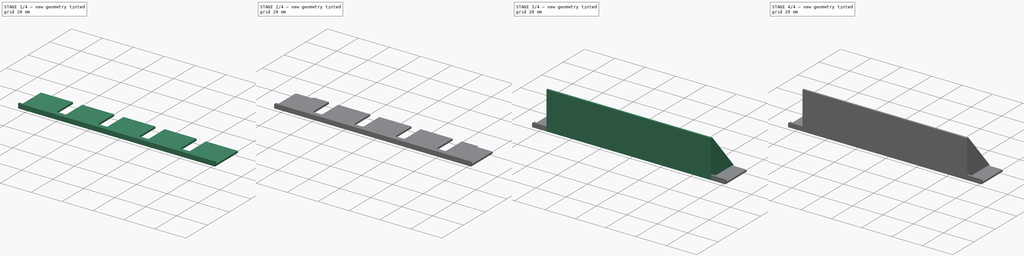
[diagram: build sequence overview — one tinted view per stage of 4, left to right]
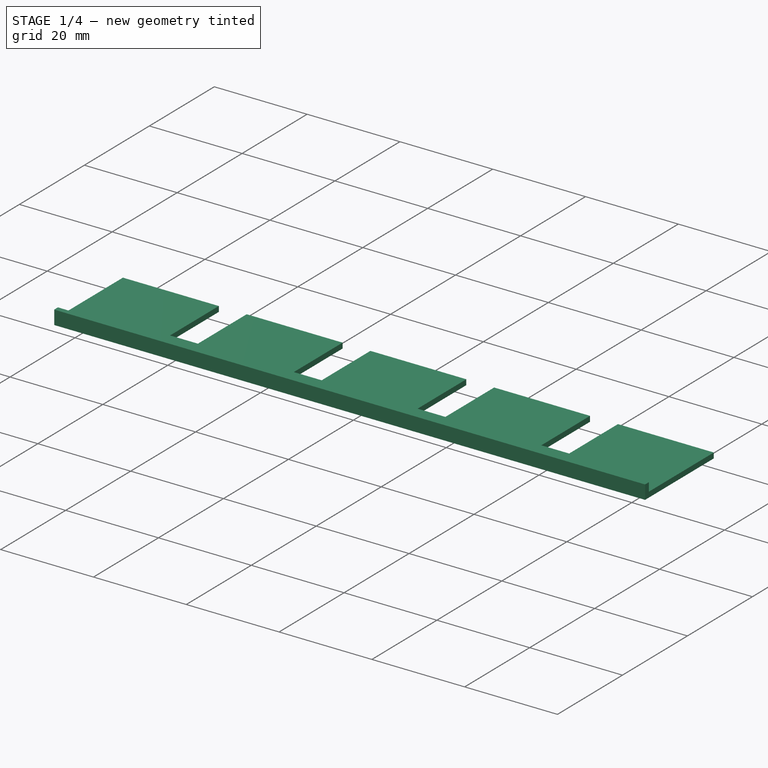
[diagram: stage 1 of 4 — iso view after this stage's code; geometry added in this stage tinted green]
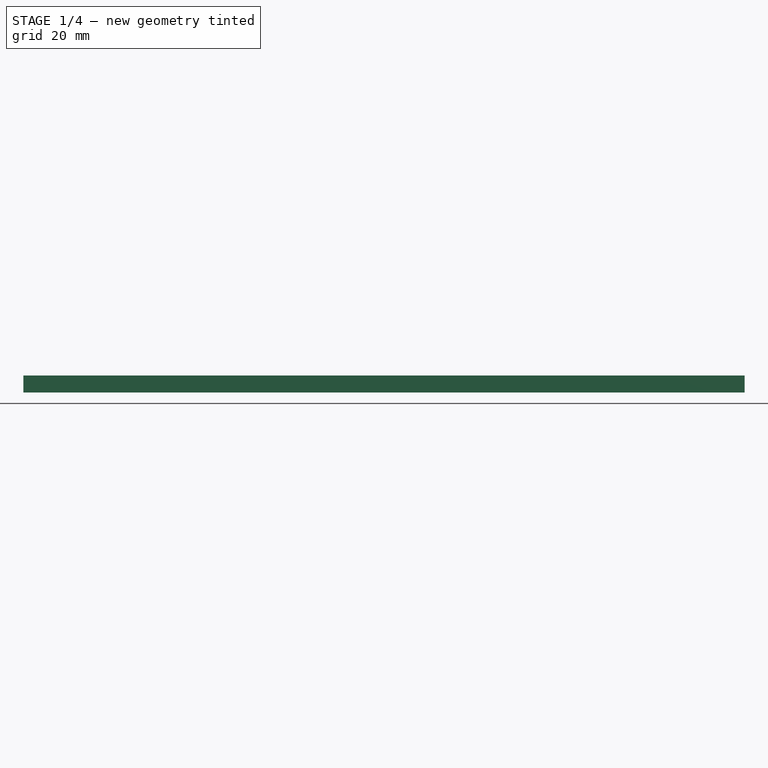
[diagram: stage 1 of 4 — front view after this stage's code; geometry added in this stage tinted green]
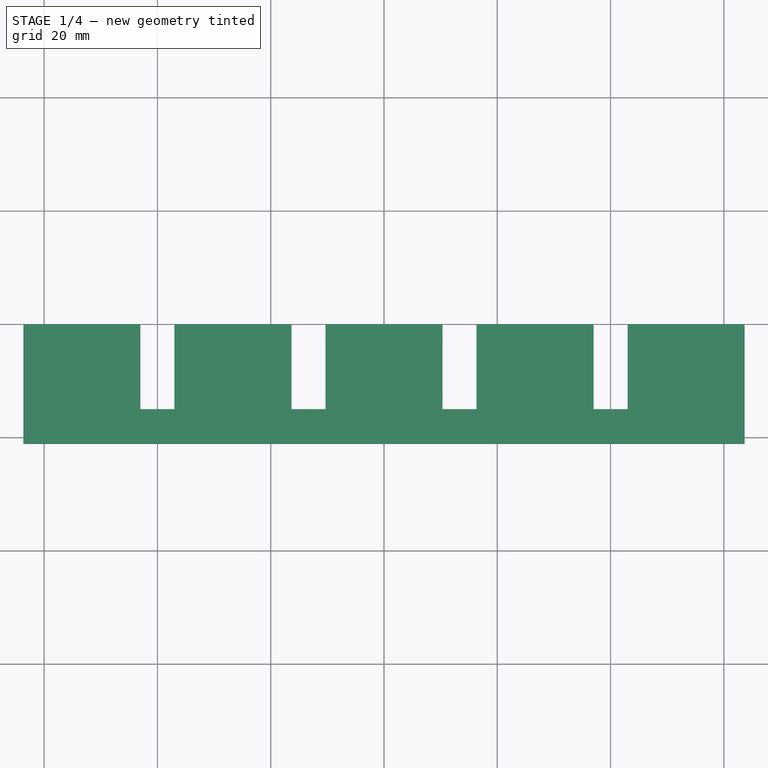
[diagram: stage 1 of 4 — top view after this stage's code; geometry added in this stage tinted green]
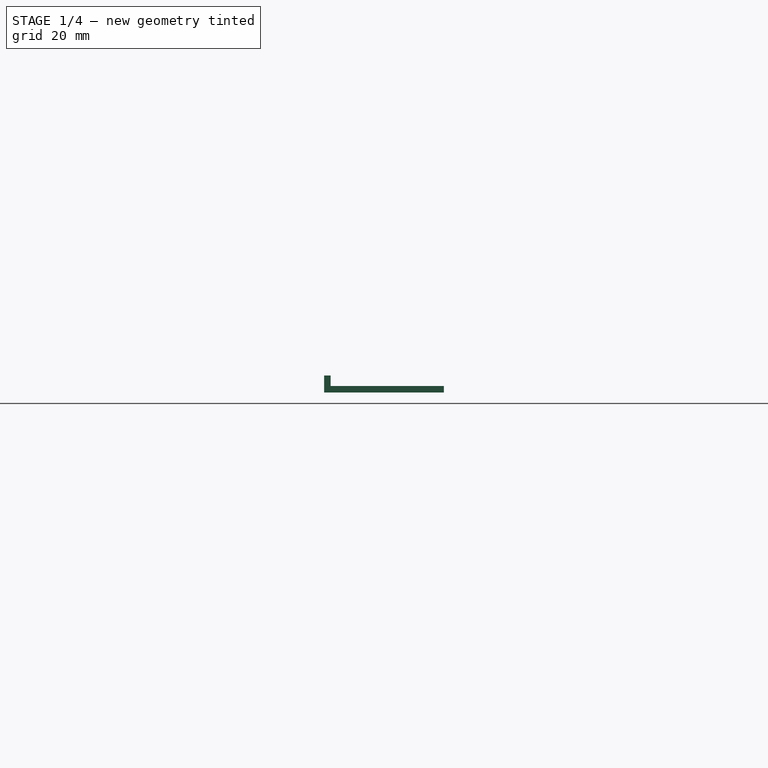
[diagram: stage 1 of 4 — right view after this stage's code; geometry added in this stage tinted green]
FCSTD DOCUMENT  (FreeCAD 0.21R33668 +26 (Git))
Label: fader_assembly_jig
License: All rights reserved
LicenseURL: https://en.wikipedia.org/wiki/All_rights_reserved
objects: Sketcher::SketchObject×5, PartDesign::Pad×5, PartDesign::Chamfer×2, PartDesign::Fillet×2, PartDesign::Body×2, PartDesign::Plane×1, PartDesign::Mirrored×1
note: 27 computed .brp shape members not serialized (recipe doc carries the construction recipe); baked Part::Feature solids carry a one-line shape summary decoded from their .brp

FEATURE [PartDesign::Body] Body
  Group = -> [Sketch,Pad,Sketch001,Pad002,DatumPlane,Sketch003,Pad003,Mirrored,Chamfer001,Fillet]
  Origin = -> Origin
  Tip = -> Fillet
FEATURE [Sketcher::SketchObject] Sketch004
  FullyConstrained = true
  MapMode = 5
  Support = -> [XY_Plane001]
  sketch-geometry (25):
    g0: LineSegment StartX=-63.675 StartY=0 StartZ=0 EndX=63.675 EndY=-7.77e-14 EndZ=0
    g1: LineSegment StartX=-63.675 StartY=0 StartZ=0 EndX=-63.675 EndY=20 EndZ=0
    g2: LineSegment StartX=63.675 StartY=-7.77e-14 StartZ=0 EndX=63.675 EndY=20 EndZ=0
    g3: LineSegment StartX=-63.675 StartY=20 StartZ=0 EndX=-43.005 EndY=20 EndZ=0
    g4: LineSegment StartX=-43.005 StartY=20 StartZ=0 EndX=-43.005 EndY=5 EndZ=0
    g5: LineSegment StartX=-43.005 StartY=5 StartZ=0 EndX=-37.005 EndY=5 EndZ=0
    g6: LineSegment StartX=-37.005 StartY=5 StartZ=0 EndX=-37.005 EndY=20 EndZ=0
    g7: LineSegment StartX=-37.005 StartY=20 StartZ=0 EndX=-16.335 EndY=20 EndZ=0
    g8: LineSegment StartX=-16.335 StartY=20 StartZ=0 EndX=-16.335 EndY=5 EndZ=0
    g9: LineSegment StartX=10.335 StartY=5 StartZ=0 EndX=10.335 EndY=20 EndZ=0
    g10: LineSegment StartX=10.335 StartY=20 StartZ=0 EndX=-10.335 EndY=20 EndZ=0
    g11: LineSegment StartX=-10.335 StartY=20 StartZ=0 EndX=-10.335 EndY=5 EndZ=0
    g12: LineSegment StartX=16.335 StartY=5 StartZ=0 EndX=16.335 EndY=20 EndZ=0
    g13: LineSegment StartX=16.335 StartY=20 StartZ=0 EndX=37.005 EndY=20 EndZ=0
    g14: LineSegment StartX=37.005 StartY=20 StartZ=0 EndX=37.005 EndY=5 EndZ=0
    g15: LineSegment StartX=37.005 StartY=5 StartZ=0 EndX=43.005 EndY=5 EndZ=0
    g16: LineSegment StartX=43.005 StartY=5 StartZ=0 EndX=43.005 EndY=20 EndZ=0
    g17: LineSegment StartX=43.005 StartY=20 StartZ=0 EndX=63.675 EndY=20 EndZ=0
    g18: LineSegment StartX=-16.335 StartY=5 StartZ=0 EndX=-10.335 EndY=5 EndZ=0
    g19: LineSegment StartX=10.335 StartY=5 StartZ=0 EndX=16.335 EndY=5 EndZ=0
    g20: GeomPoint X=1e-16 Y=20 Z=0
    g21: LineSegment StartX=-13.335 StartY=5 StartZ=0 EndX=-13.335 EndY=20 EndZ=0
    g22: LineSegment StartX=13.335 StartY=5 StartZ=0 EndX=13.335 EndY=20 EndZ=0
    g23: LineSegment StartX=40.005 StartY=5 StartZ=0 EndX=40.005 EndY=20 EndZ=0
    g24: LineSegment StartX=-40.005 StartY=5 StartZ=0 EndX=-40.005 EndY=20 EndZ=0
  constraints (73):
    c: PointOnObject(g0,g-1)
    c: Symmetric(g0,g0,g-1)
    c: Coincident(g1,g0)
    c: Vertical(g1)
    c: Coincident(g2,g0)
    c: Vertical(g2)
    c: Coincident(g3,g1)
    c: Horizontal(g3)
    c: Coincident(g4,g3)
    c: Coincident(g5,g4)
    c: Coincident(g6,g5)
    c: Vertical(g6)
    c: Vertical(g11)
    c: Horizontal(g13)
    c: Vertical(g14)
    c: Horizontal(g15)
    c: Vertical(g16)
    c: Horizontal(g17)
    c: Coincident(g17,g2)
    c: Vertical(g12)
    c: Vertical(g9)
    c: Vertical(g8)
    c: Vertical(g4)
    c: Horizontal(g5)
    c: Horizontal(g10)
    c: Horizontal(g7)
    c: Coincident(g9,g10)
    c: Coincident(g11,g10)
    c: Coincident(g13,g12)
    c: Coincident(g8,g7)
    c: Coincident(g7,g6)
    c: Equal(g7,g10)
    c: Equal(g10,g13)
    c: Coincident(g13,g14)
    c: Coincident(g16,g17)
    c: Coincident(g15,g14)
    c: Coincident(g16,g15)
    c: Horizontal(g3,g6)
    c: Horizontal(g7,g9)
    c: Horizontal(g10,g12)
    c: Horizontal(g13,g16)
    c: Horizontal(g5,g8)
    c: Horizontal(g9,g11)
    c: Horizontal(g12,g14)
    c: Coincident(g18,g8)
    c: Coincident(g18,g11)
    c: Horizontal(g18)
    c: Coincident(g19,g9)
    c: Coincident(g19,g12)
    c: Horizontal(g19)
    c: Symmetric(g9,g10,g20)
    c: PointOnObject(g20,g-2)
    c: DistanceY(g1,g1) = 20
    c: Equal(g15,g19)
    c: Equal(g19,g18)
    c: DistanceY(g9,g9) = 15
    c: DistanceX(g0,g0) = 127.35
    c: Vertical(g21)
    c: Vertical(g22)
    c: Vertical(g23)
    c: Vertical(g24)
    c: Symmetric(g4,g5,g24)
    c: Symmetric(g8,g11,g21)
    c: Symmetric(g12,g9,g22)
    c: Symmetric(g15,g14,g23)
    c: Horizontal(g16,g23)
    c: Horizontal(g12,g22)
    c: Horizontal(g10,g21)
    c: Horizontal(g6,g24)
    c: DistanceX(g22,g23) = 26.67
    c: DistanceX(g19,g19) = 6
    c: Equal(g17,g3)
    c: Equal(g7,g3)
FEATURE [PartDesign::Pad] Pad004
  Direction = (0,0,1)
  Length = 1.15
  Length2 = 10
  Profile = -> Sketch004
  ReferenceAxis = -> Sketch004 [N_Axis]
  Type = 0
FEATURE [Sketcher::SketchObject] Sketch005
  FullyConstrained = true
  MapMode = 5
  Placement = pos=(0,0,0) rot=(1,0,0;1.5708rad)
  Support = -> [XZ_Plane001]
  sketch-geometry (4):
    g0: LineSegment StartX=-63.675 StartY=0 StartZ=0 EndX=-63.675 EndY=3 EndZ=0
    g1: LineSegment StartX=63.675 StartY=0 StartZ=0 EndX=63.675 EndY=3 EndZ=0
    g2: LineSegment StartX=63.675 StartY=0 StartZ=0 EndX=-63.675 EndY=0 EndZ=0
    g3: LineSegment StartX=-63.675 StartY=3 StartZ=0 EndX=63.675 EndY=3 EndZ=0
  constraints (11):
    c: PointOnObject(g0,g-1)
    c: Vertical(g0)
    c: Vertical(g1)
    c: Coincident(g2,g1)
    c: Coincident(g2,g0)
    c: DistanceX(g2,g2) = 127.35
    c: Symmetric(g1,g0,g-1)
    c: Coincident(g3,g0)
    c: Coincident(g3,g1)
    c: Horizontal(g3)
    c: DistanceY(g0,g0) = 3
FEATURE [PartDesign::Pad] Pad005
  BaseFeature = -> Pad004
  Direction = (0,-1,-2e-16)
  Length = 1.15
  Length2 = 10
  Profile = -> Sketch005
  ReferenceAxis = -> Sketch005 [N_Axis]
  Type = 0
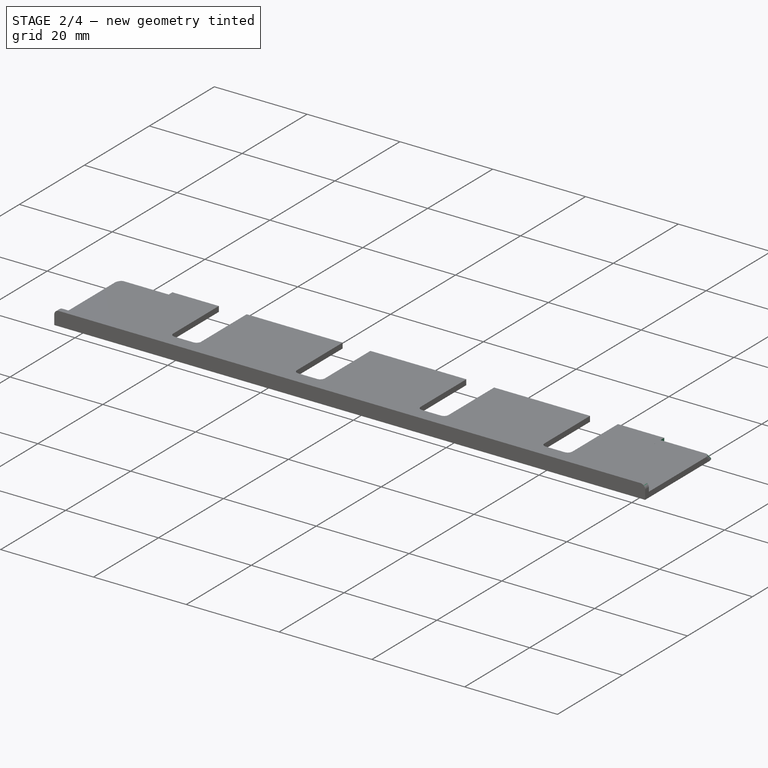
[diagram: stage 2 of 4 — iso view after this stage's code; geometry added in this stage tinted green]
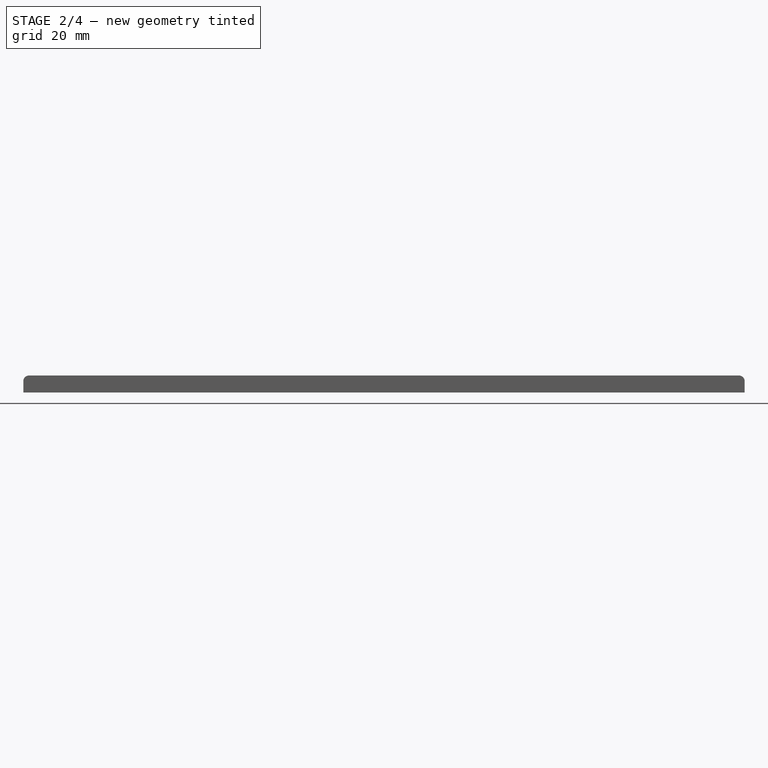
[diagram: stage 2 of 4 — front view after this stage's code; geometry added in this stage tinted green]
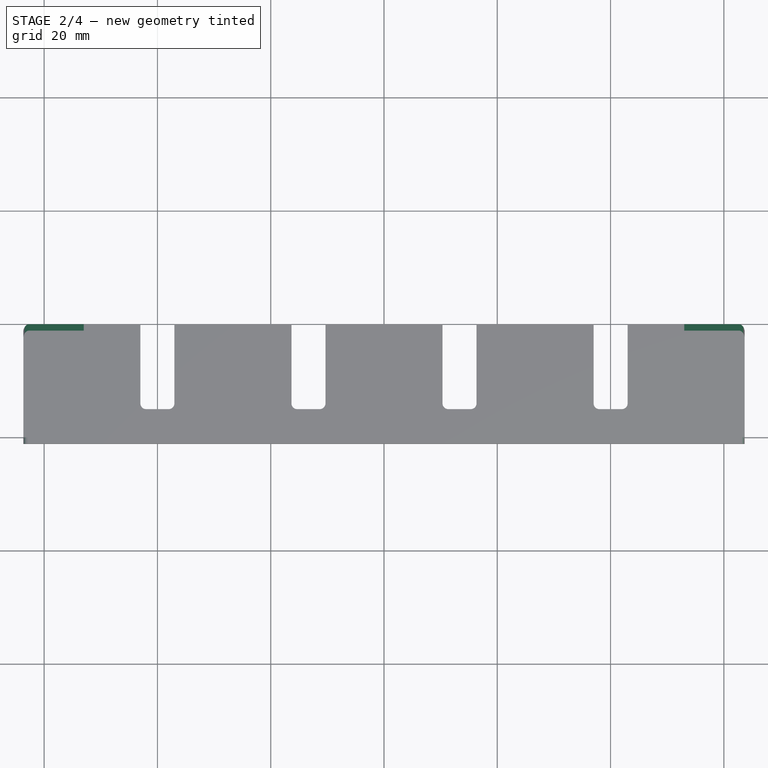
[diagram: stage 2 of 4 — top view after this stage's code; geometry added in this stage tinted green]
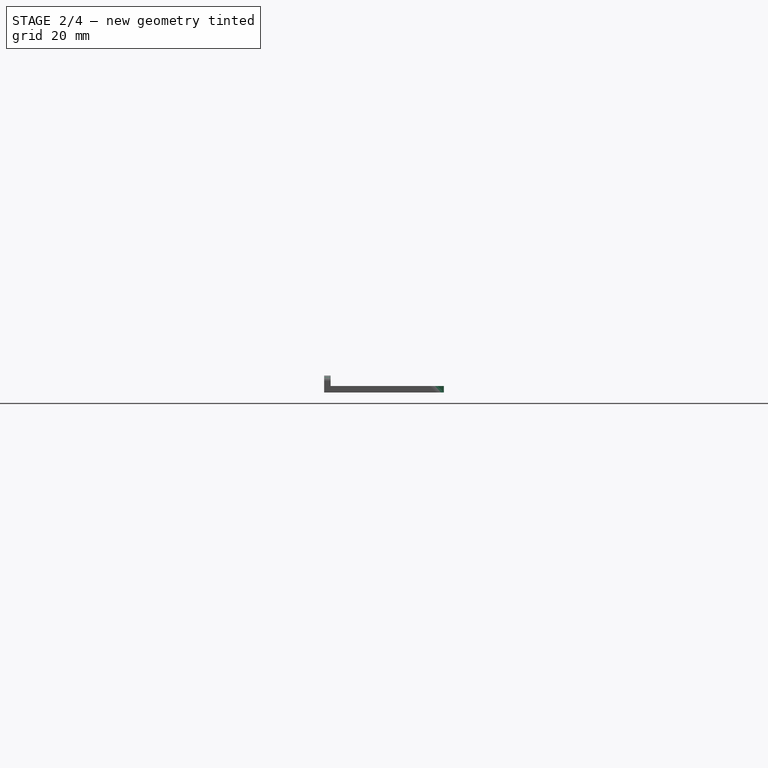
[diagram: stage 2 of 4 — right view after this stage's code; geometry added in this stage tinted green]
FEATURE [Sketcher::SketchObject] Sketch
  FullyConstrained = true
  MapMode = 5
  Support = -> [XY_Plane]
  sketch-geometry (25):
    g0: LineSegment StartX=-53.005 StartY=0 StartZ=0 EndX=53.005 EndY=1.76e-14 EndZ=0
    g1: LineSegment StartX=-53.005 StartY=0 StartZ=0 EndX=-53.005 EndY=20 EndZ=0
    g2: LineSegment StartX=53.005 StartY=1.76e-14 StartZ=0 EndX=53.005 EndY=20 EndZ=0
    g3: LineSegment StartX=-53.005 StartY=20 StartZ=0 EndX=-43.005 EndY=20 EndZ=0
    g4: LineSegment StartX=-43.005 StartY=20 StartZ=0 EndX=-43.005 EndY=5 EndZ=0
    g5: LineSegment StartX=-43.005 StartY=5 StartZ=0 EndX=-37.005 EndY=5 EndZ=0
    g6: LineSegment StartX=-37.005 StartY=5 StartZ=0 EndX=-37.005 EndY=20 EndZ=0
    g7: LineSegment StartX=-37.005 StartY=20 StartZ=0 EndX=-16.335 EndY=20 EndZ=0
    g8: LineSegment StartX=-16.335 StartY=20 StartZ=0 EndX=-16.335 EndY=5 EndZ=0
    g9: LineSegment StartX=10.335 StartY=5 StartZ=0 EndX=10.335 EndY=20 EndZ=0
    g10: LineSegment StartX=10.335 StartY=20 StartZ=0 EndX=-10.335 EndY=20 EndZ=0
    g11: LineSegment StartX=-10.335 StartY=20 StartZ=0 EndX=-10.335 EndY=5 EndZ=0
    g12: LineSegment StartX=16.335 StartY=5 StartZ=0 EndX=16.335 EndY=20 EndZ=0
    g13: LineSegment StartX=16.335 StartY=20 StartZ=0 EndX=37.005 EndY=20 EndZ=0
    g14: LineSegment StartX=37.005 StartY=20 StartZ=0 EndX=37.005 EndY=5 EndZ=0
    g15: LineSegment StartX=37.005 StartY=5 StartZ=0 EndX=43.005 EndY=5 EndZ=0
    g16: LineSegment StartX=43.005 StartY=5 StartZ=0 EndX=43.005 EndY=20 EndZ=0
    g17: LineSegment StartX=43.005 StartY=20 StartZ=0 EndX=53.005 EndY=20 EndZ=0
    g18: LineSegment StartX=-16.335 StartY=5 StartZ=0 EndX=-10.335 EndY=5 EndZ=0
    g19: LineSegment StartX=10.335 StartY=5 StartZ=0 EndX=16.335 EndY=5 EndZ=0
    g20: GeomPoint X=-1e-16 Y=20 Z=0
    g21: LineSegment StartX=-13.335 StartY=5 StartZ=0 EndX=-13.335 EndY=20 EndZ=0
    g22: LineSegment StartX=13.335 StartY=5 StartZ=0 EndX=13.335 EndY=20 EndZ=0
    g23: LineSegment StartX=40.005 StartY=5 StartZ=0 EndX=40.005 EndY=20 EndZ=0
    g24: LineSegment StartX=-40.005 StartY=5 StartZ=0 EndX=-40.005 EndY=20 EndZ=0
  constraints (73):
    c: PointOnObject(g0,g-1)
    c: Symmetric(g0,g0,g-1)
    c: Coincident(g1,g0)
    c: Vertical(g1)
    c: Coincident(g2,g0)
    c: Vertical(g2)
    c: Coincident(g3,g1)
    c: Horizontal(g3)
    c: Coincident(g4,g3)
    c: Coincident(g5,g4)
    c: Coincident(g6,g5)
    c: Vertical(g6)
    c: Vertical(g11)
    c: Horizontal(g13)
    c: Vertical(g14)
    c: Horizontal(g15)
    c: Vertical(g16)
    c: Horizontal(g17)
    c: Coincident(g17,g2)
    c: Vertical(g12)
    c: Vertical(g9)
    c: Vertical(g8)
    c: Vertical(g4)
    c: Horizontal(g5)
    c: Horizontal(g10)
    c: Horizontal(g7)
    c: Coincident(g9,g10)
    c: Coincident(g11,g10)
    c: Coincident(g13,g12)
    c: Coincident(g8,g7)
    c: Coincident(g7,g6)
    c: Equal(g7,g10)
    c: Equal(g10,g13)
    c: Coincident(g13,g14)
    c: Coincident(g16,g17)
    c: Coincident(g15,g14)
    c: Coincident(g16,g15)
    c: Horizontal(g3,g6)
    c: Horizontal(g7,g9)
    c: Horizontal(g10,g12)
    c: Horizontal(g13,g16)
    c: Horizontal(g5,g8)
    c: Horizontal(g9,g11)
    c: Horizontal(g12,g14)
    c: Coincident(g18,g8)
    c: Coincident(g18,g11)
    c: Horizontal(g18)
    c: Coincident(g19,g9)
    c: Coincident(g19,g12)
    c: Horizontal(g19)
    c: Symmetric(g9,g10,g20)
    c: PointOnObject(g20,g-2)
    c: DistanceY(g1,g1) = 20
    c: Equal(g15,g19)
    c: Equal(g19,g18)
    c: DistanceY(g9,g9) = 15
    c: DistanceX(g0,g0) = 106.01
    c: Vertical(g21)
    c: Vertical(g22)
    c: Vertical(g23)
    c: Vertical(g24)
    c: Symmetric(g4,g5,g24)
    c: Symmetric(g8,g11,g21)
    c: Symmetric(g12,g9,g22)
    c: Symmetric(g15,g14,g23)
    c: Horizontal(g16,g23)
    c: Horizontal(g12,g22)
    c: Horizontal(g10,g21)
    c: Horizontal(g6,g24)
    c: DistanceX(g22,g23) = 26.67
    c: DistanceX(g19,g19) = 6
    c: Equal(g17,g3)
    c: DistanceX(g3,g3) = 10
FEATURE [PartDesign::Pad] Pad
  Direction = (0,0,1)
  Length = 1.15
  Length2 = 10
  Profile = -> Sketch
  ReferenceAxis = -> Sketch [N_Axis]
  Type = 0
FEATURE [PartDesign::Chamfer] Chamfer
  Angle = 45
  Base = -> Pad005 [Edge31,Edge7,Edge43,Edge39,Edge35]
  BaseFeature = -> Pad005
  ChamferType = 0
  FlipDirection = false
  Size = 1.14
  Size2 = 1
  SupportTransform = false
  UseAllEdges = false
FEATURE [PartDesign::Fillet] Fillet001
  Base = -> Chamfer [Edge64,Edge60,Edge66,Edge68,Edge71,Edge73,Edge75,Edge78,Edge5,Edge2,Edge9,Edge49,Edge51,Edge54,Edge65,Edge72,Edge47,Edge48,Edge82,Edge84]
  BaseFeature = -> Chamfer
  Radius = 1
  SupportTransform = false
  UseAllEdges = false
FEATURE [PartDesign::Body] Body001
  Group = -> [Sketch004,Pad004,Sketch005,Pad005,Chamfer,Fillet001]
  Origin = -> Origin001
  Tip = -> Fillet001
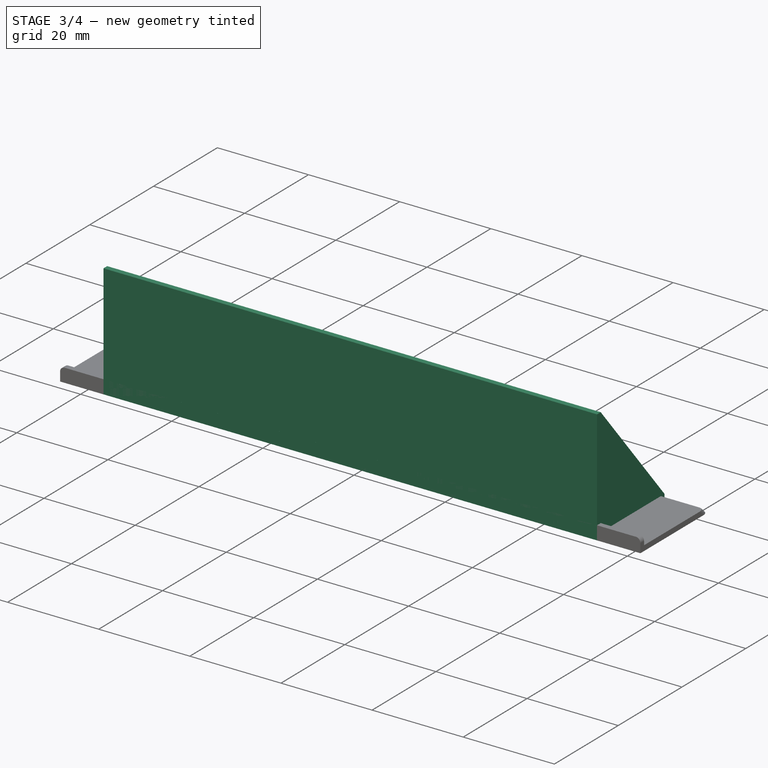
[diagram: stage 3 of 4 — iso view after this stage's code; geometry added in this stage tinted green]
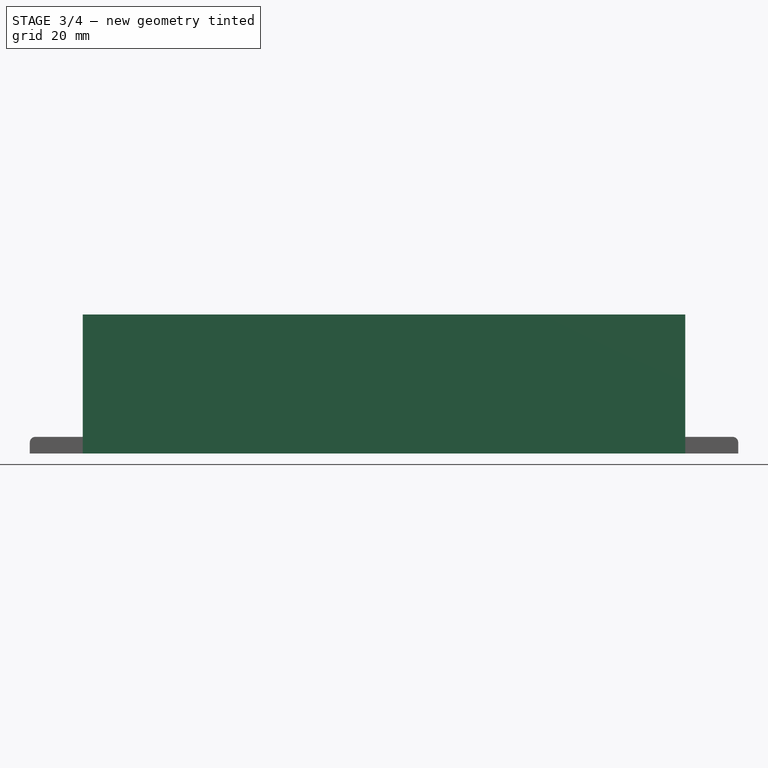
[diagram: stage 3 of 4 — front view after this stage's code; geometry added in this stage tinted green]
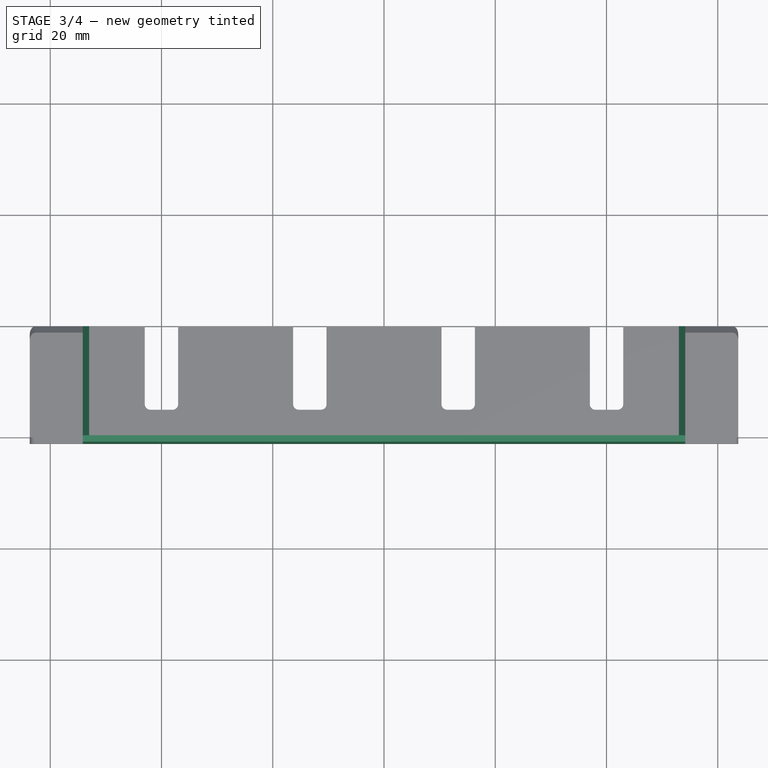
[diagram: stage 3 of 4 — top view after this stage's code; geometry added in this stage tinted green]
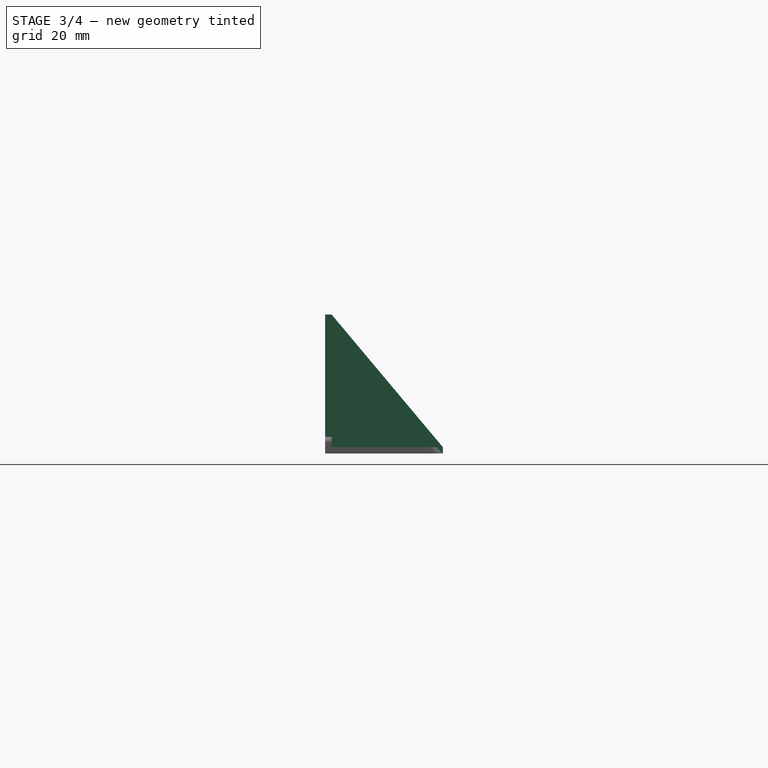
[diagram: stage 3 of 4 — right view after this stage's code; geometry added in this stage tinted green]
FEATURE [Sketcher::SketchObject] Sketch001
  FullyConstrained = true
  MapMode = 5
  Placement = pos=(0,0,0) rot=(1,0,0;1.5708rad)
  Support = -> [XZ_Plane]
  sketch-geometry (4):
    g0: LineSegment StartX=-53.005 StartY=0 StartZ=0 EndX=-53.005 EndY=25 EndZ=0
    g1: LineSegment StartX=53.005 StartY=0 StartZ=0 EndX=53.005 EndY=25 EndZ=0
    g2: LineSegment StartX=53.005 StartY=0 StartZ=0 EndX=-53.005 EndY=0 EndZ=0
    g3: LineSegment StartX=-53.005 StartY=25 StartZ=0 EndX=53.005 EndY=25 EndZ=0
  constraints (11):
    c: PointOnObject(g0,g-1)
    c: Vertical(g0)
    c: Vertical(g1)
    c: Coincident(g2,g1)
    c: Coincident(g2,g0)
    c: DistanceX(g2,g2) = 106.01
    c: Symmetric(g1,g0,g-1)
    c: Coincident(g3,g0)
    c: Coincident(g3,g1)
    c: Horizontal(g3)
    c: DistanceY(g0,g0) = 25
FEATURE [PartDesign::Pad] Pad002
  BaseFeature = -> Pad
  Direction = (0,-1,2e-16)
  Length = 1.15
  Length2 = 10
  Profile = -> Sketch001
  ReferenceAxis = -> Sketch001 [N_Axis]
  Type = 0
FEATURE [PartDesign::Plane] DatumPlane
  AttachmentOffset = pos=(0,0,53.005) rot=(0,0,1;0rad)
  Length = 60
  MapMode = 5
  Placement = pos=(53.005,-1.18e-14,1.18e-14) rot=(0.57735,0.57735,0.57735;2.0944rad)
  ResizeMode = 0
  Support = -> [YZ_Plane]
  Width = 60
FEATURE [Sketcher::SketchObject] Sketch003
  ExternalGeometry = -> [Pad002]
  FullyConstrained = true
  MapMode = 5
  Placement = pos=(53.005,-1.18e-14,1.18e-14) rot=(0.57735,0.57735,0.57735;2.0944rad)
  Support = -> [DatumPlane]
  sketch-geometry (5):
    g0: LineSegment StartX=1.58e-14 StartY=25 StartZ=0 EndX=20 EndY=1.15 EndZ=0
    g1: LineSegment StartX=20 StartY=1.15 StartZ=0 EndX=20 EndY=-1.07e-14 EndZ=0
    g2: LineSegment StartX=1.58e-14 StartY=25 StartZ=0 EndX=-1.15 EndY=25 EndZ=0
    g3: LineSegment StartX=-1.15 StartY=25 StartZ=0 EndX=-1.15 EndY=-1.42e-14 EndZ=0
    g4: LineSegment StartX=-1.15 StartY=-1.42e-14 StartZ=0 EndX=20 EndY=-1.07e-14 EndZ=0
  constraints (10):
    c: Coincident(g0,g-6)
    c: Coincident(g0,g-7)
    c: Coincident(g1,g0)
    c: Coincident(g1,g-7)
    c: Coincident(g2,g0)
    c: Coincident(g2,g-6)
    c: Coincident(g3,g2)
    c: Coincident(g3,g-5)
    c: Coincident(g4,g3)
    c: Coincident(g4,g1)
FEATURE [PartDesign::Pad] Pad003
  BaseFeature = -> Pad002
  Direction = (1,-1e-16,1e-16)
  Length = 1.15
  Length2 = 10
  Profile = -> Sketch003
  ReferenceAxis = -> Sketch003 [N_Axis]
  Type = 0
FEATURE [PartDesign::Mirrored] Mirrored
  BaseFeature = -> Pad003
  MirrorPlane = -> YZ_Plane
  Originals = -> [Pad003]
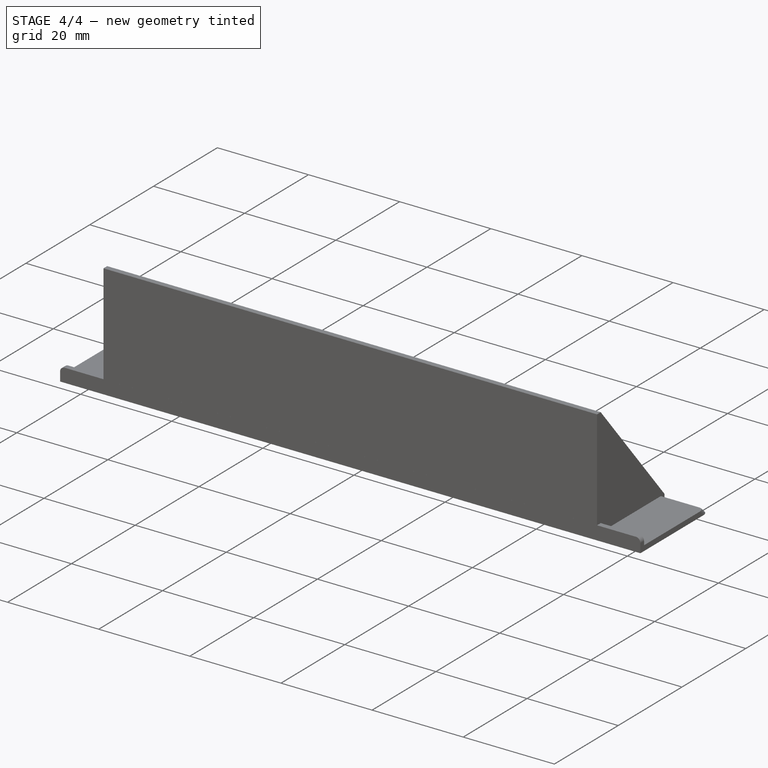
[diagram: stage 4 of 4 — iso view after this stage's code; geometry added in this stage tinted green]
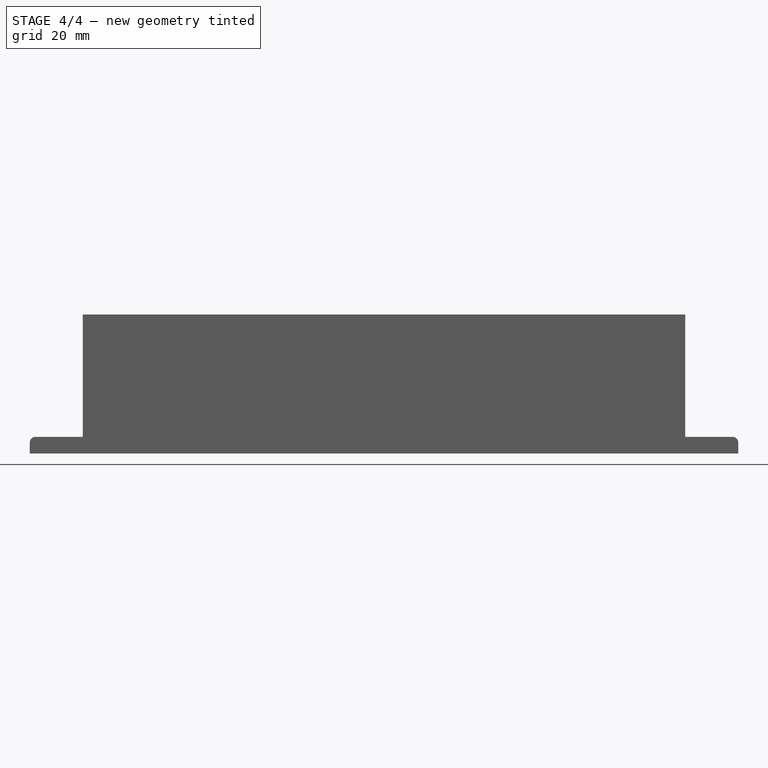
[diagram: stage 4 of 4 — front view after this stage's code; geometry added in this stage tinted green]
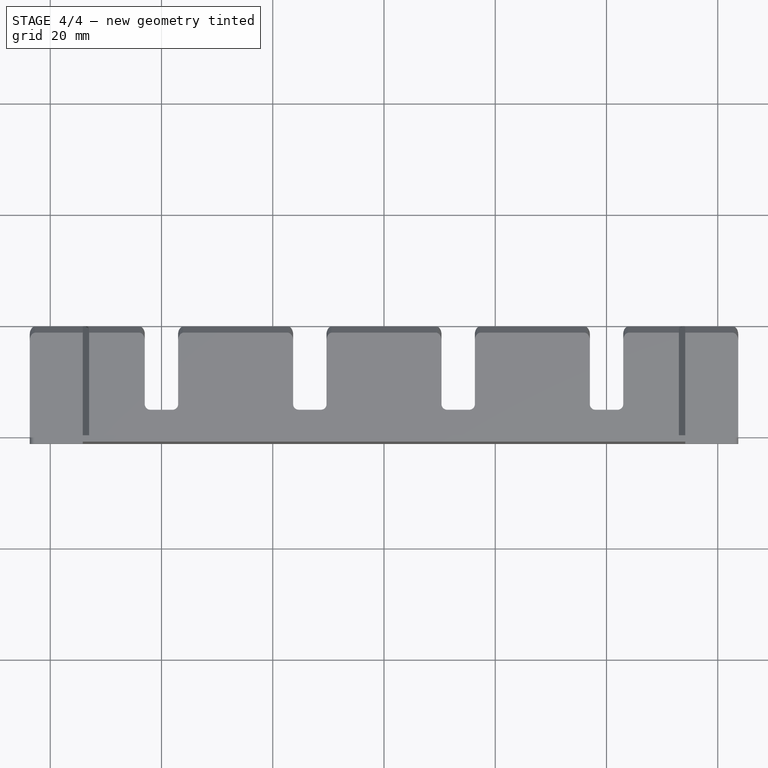
[diagram: stage 4 of 4 — top view after this stage's code; geometry added in this stage tinted green]
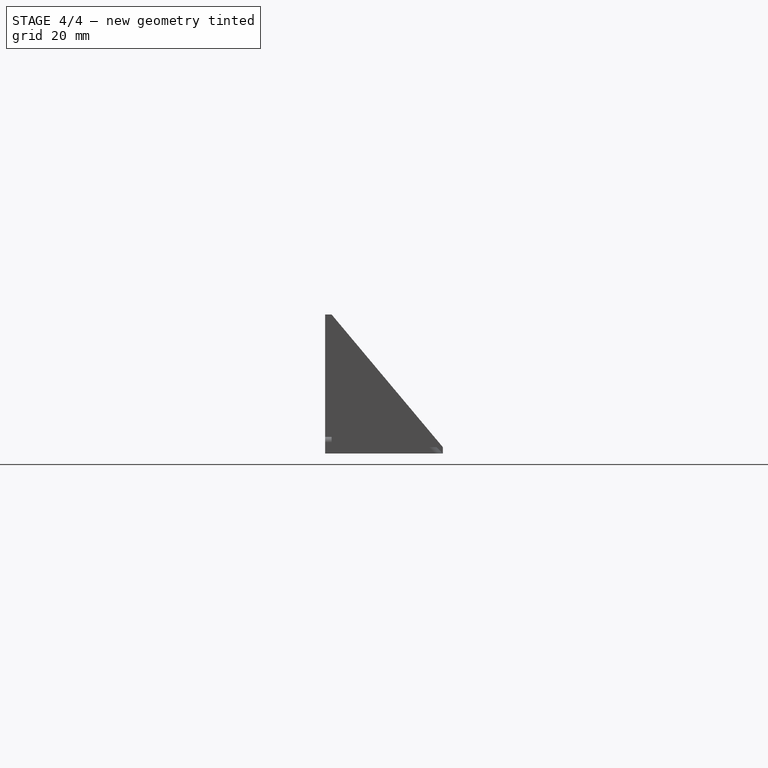
[diagram: stage 4 of 4 — right view after this stage's code; geometry added in this stage tinted green]
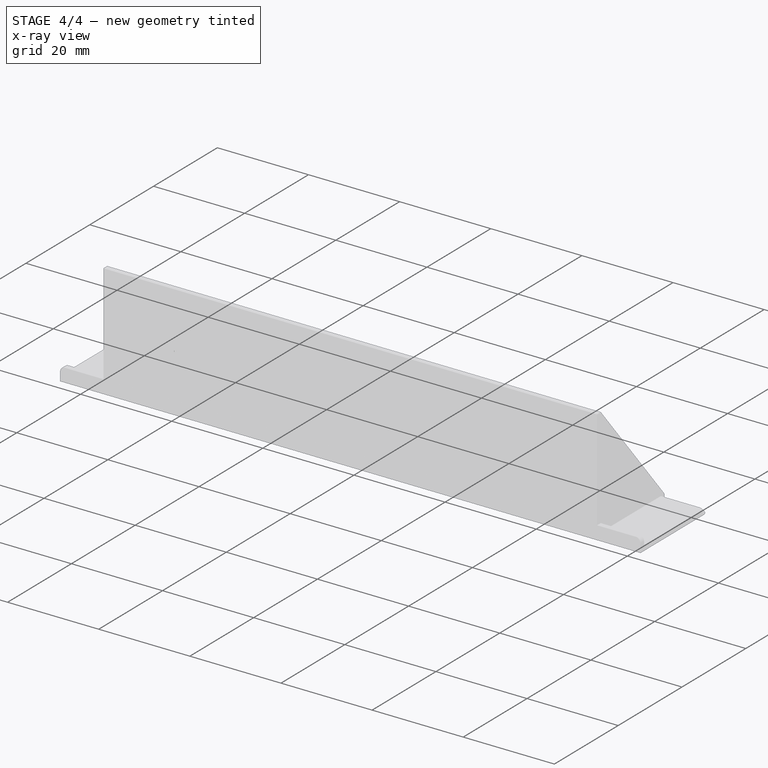
[diagram: stage 4 of 4 — x-ray composite at the iso view; earlier geometry ghosted, this stage's added geometry solid]
FEATURE [PartDesign::Chamfer] Chamfer001
  Angle = 45
  Base = -> Mirrored [Edge35,Edge39,Edge43,Edge7,Edge31]
  BaseFeature = -> Mirrored
  ChamferType = 0
  FlipDirection = false
  Size = 1.14
  Size2 = 1
  SupportTransform = false
  UseAllEdges = false
FEATURE [PartDesign::Fillet] Fillet
  Base = -> Chamfer001 [Edge68,Edge75,Edge5,Edge49,Edge51,Edge9,Edge2,Edge80,Edge77,Edge73,Edge70,Edge66,Edge47,Edge74,Edge48,Edge67]
  BaseFeature = -> Chamfer001
  Radius = 1
  SupportTransform = false
  UseAllEdges = false
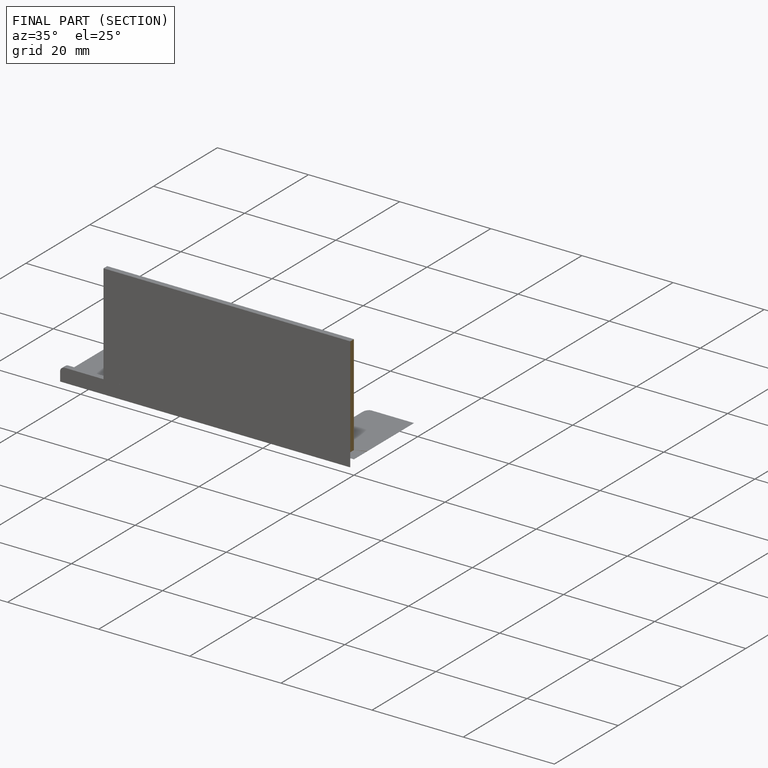
[diagram: finished part — half-section view (interior)]
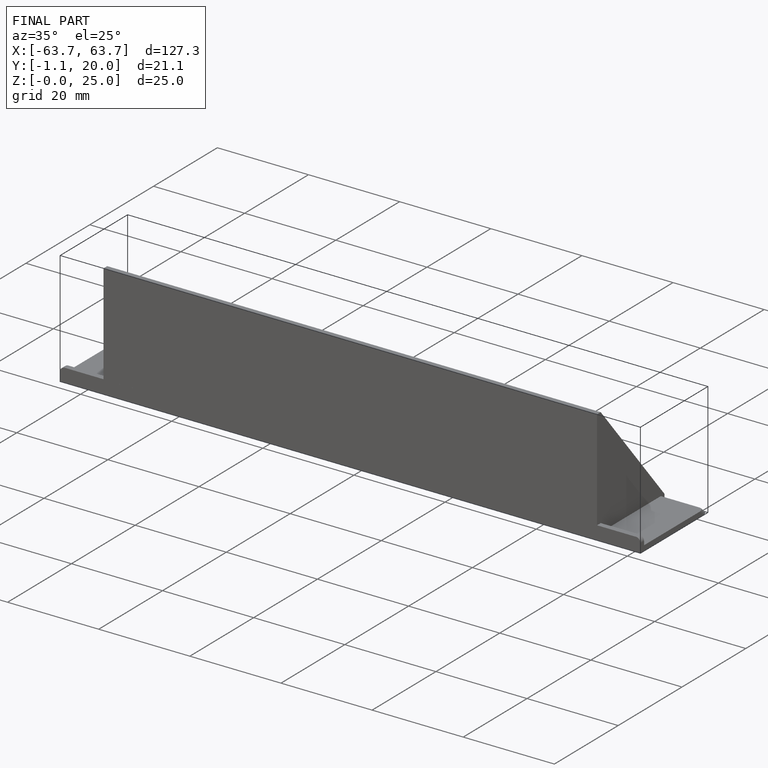
[diagram: finished part — iso view with bounding-box wireframe]
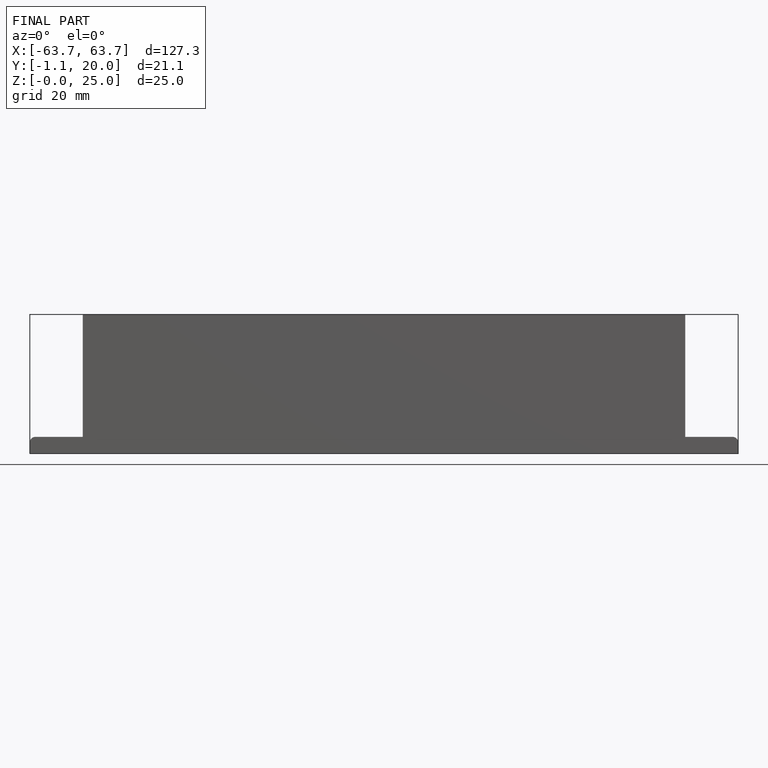
[diagram: finished part — front view with bounding-box wireframe]
